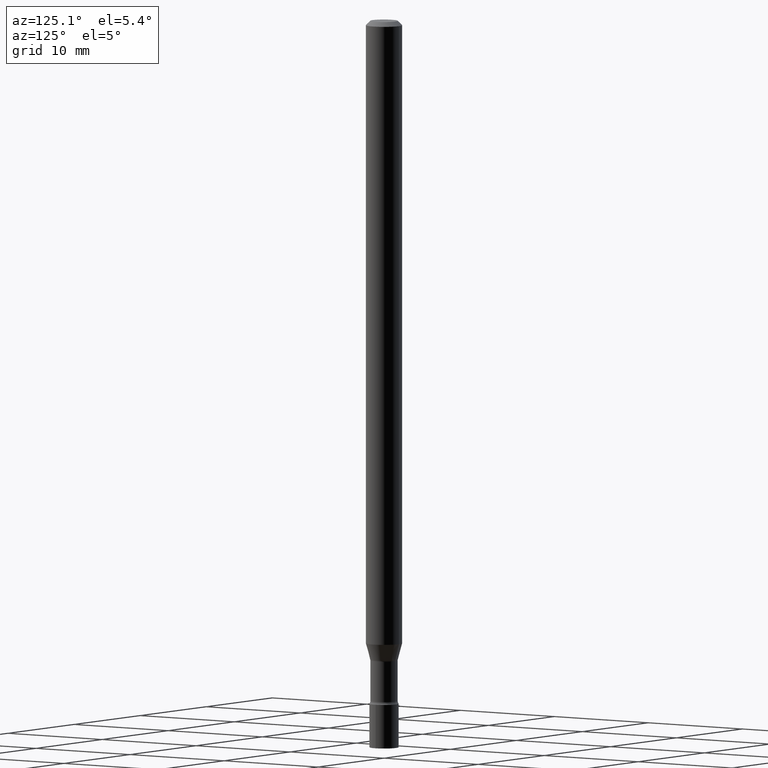
[diagram: clean part render]
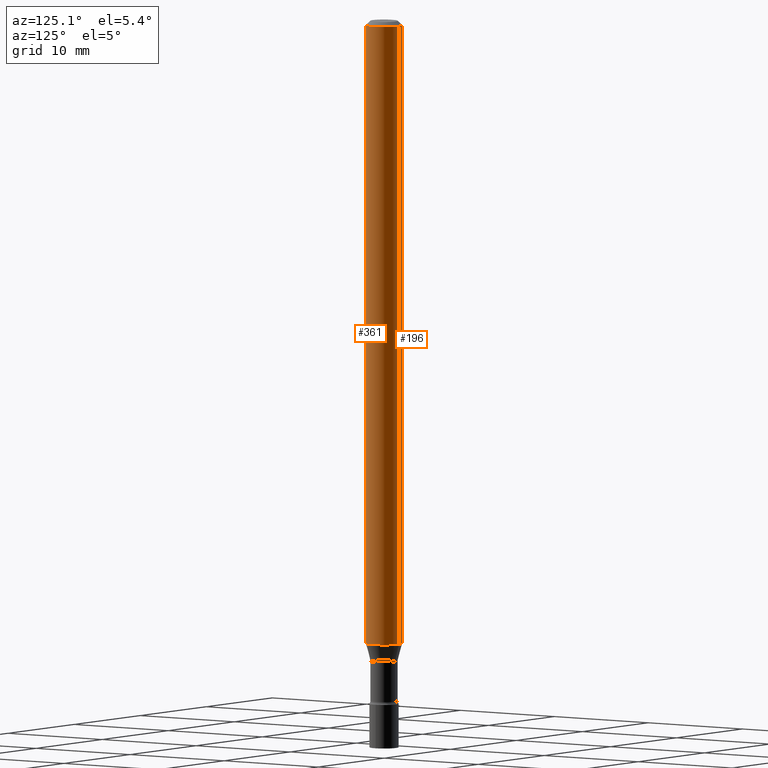
[diagram: same view with one multi-face feature highlighted, each face labeled with its STEP entity id]
A machine part, auxiliary view. The highlighted faces form ONE feature: a constant-radius fillet chain: 2 tangent blend faces with common blend radius 1.5875 mm. The faces share edges in the B-rep.
Their STEP definitions:
[1] entity #196 (Cylinder):
#40 = ORIENTED_EDGE ( 'NONE', *, *, #226, .F. ) ;
#50 = CYLINDRICAL_SURFACE ( 'NONE', #174, 0.06250000000000000000 ) ;
#52 = CARTESIAN_POINT ( 'NONE',  ( 4.440892098500625669E-16, 0.06250000000000000000, -2.182191447160403024E-16 ) ) ;
#54 = CIRCLE ( 'NONE', #132, 0.06250000000000000000 ) ;
#64 = DIRECTION ( 'NONE',  ( -6.982962677686265922E-15, -1.000000000000000000, 3.483106191921935554E-15 ) ) ;
#66 = DIRECTION ( 'NONE',  ( -6.982962677686265922E-15, -1.000000000000000000, 4.370956789862821150E-15 ) ) ;
#100 = LINE ( 'NONE', #176, #175 ) ;
#120 = CARTESIAN_POINT ( 'NONE',  ( 0.000000000000000000, 0.000000000000000000, 0.000000000000000000 ) ) ;
#122 = FACE_OUTER_BOUND ( 'NONE', #360, .T. ) ;
#126 = DIRECTION ( 'NONE',  ( -2.445451365109148725E-29, 3.491506315456644838E-15, 1.000000000000000000 ) ) ;
#132 = AXIS2_PLACEMENT_3D ( 'NONE', #416, #466, #66 ) ;
#146 = AXIS2_PLACEMENT_3D ( 'NONE', #331, #126, #64 ) ;
#174 = AXIS2_PLACEMENT_3D ( 'NONE', #120, #323, #278 ) ;
#175 = VECTOR ( 'NONE', #339, 39.37007874015748143 ) ;
#176 = CARTESIAN_POINT ( 'NONE',  ( -4.364351673553916201E-16, -0.06250000000000000000, 2.182191447160403024E-16 ) ) ;
#178 = CARTESIAN_POINT ( 'NONE',  ( 4.440892098501151740E-16, 0.06249999999999255457, -2.142153212482682978 ) ) ;
#196 = ADVANCED_FACE ( 'NONE', ( #122 ), #50, .T. ) ;
#213 = VERTEX_POINT ( 'NONE', #279 ) ;
#226 = EDGE_CURVE ( 'NONE', #213, #474, #374, .T. ) ;
#278 = DIRECTION ( 'NONE',  ( -6.982962677686265922E-15, -1.000000000000000000, 3.491506315456644838E-15 ) ) ;
#279 = CARTESIAN_POINT ( 'NONE',  ( 4.440892098501153712E-16, 0.06249999999999995837, -0.01500000000000024751 ) ) ;
#283 = VERTEX_POINT ( 'NONE', #178 ) ;
#304 = ORIENTED_EDGE ( 'NONE', *, *, #310, .F. ) ;
#308 = CARTESIAN_POINT ( 'NONE',  ( -4.364351673553390129E-16, -0.06250000000000743849, -2.142153212482682090 ) ) ;
#310 = EDGE_CURVE ( 'NONE', #283, #213, #405, .T. ) ;
#323 = DIRECTION ( 'NONE',  ( -2.445451365109148725E-29, 3.491506315456644838E-15, 1.000000000000000000 ) ) ;
#331 = CARTESIAN_POINT ( 'NONE',  ( 3.668177047663730198E-31, -5.237259473184978080E-17, -0.01500000000000003067 ) ) ;
#339 = DIRECTION ( 'NONE',  ( -2.445451365109148725E-29, 3.491506315456645233E-15, 1.000000000000000000 ) ) ;
#348 = EDGE_CURVE ( 'NONE', #368, #474, #100, .T. ) ;
#360 = EDGE_LOOP ( 'NONE', ( #304, #479, #381, #40 ) ) ;
#368 = VERTEX_POINT ( 'NONE', #308 ) ;
#369 = EDGE_CURVE ( 'NONE', #283, #368, #54, .T. ) ;
#374 = CIRCLE ( 'NONE', #146, 0.06250000000000000000 ) ;
#381 = ORIENTED_EDGE ( 'NONE', *, *, #348, .T. ) ;
#393 = VECTOR ( 'NONE', #450, 39.37007874015748143 ) ;
#405 = LINE ( 'NONE', #52, #393 ) ;
#416 = CARTESIAN_POINT ( 'NONE',  ( 5.238531497738724756E-29, -7.479341470059026022E-15, -2.142153212482682534 ) ) ;
#425 = CARTESIAN_POINT ( 'NONE',  ( -4.364351673553912750E-16, -0.06250000000000005551, -0.01499999999999981209 ) ) ;
#450 = DIRECTION ( 'NONE',  ( -2.445451365109148725E-29, 3.491506315456645233E-15, 1.000000000000000000 ) ) ;
#466 = DIRECTION ( 'NONE',  ( -2.445451365109148725E-29, 3.491506315456644838E-15, 1.000000000000000000 ) ) ;
#474 = VERTEX_POINT ( 'NONE', #425 ) ;
#479 = ORIENTED_EDGE ( 'NONE', *, *, #369, .T. ) ;
[2] entity #361 (Cylinder):
#24 = CYLINDRICAL_SURFACE ( 'NONE', #407, 0.06250000000000000000 ) ;
#52 = CARTESIAN_POINT ( 'NONE',  ( 4.440892098500625669E-16, 0.06250000000000000000, -2.182191447160403024E-16 ) ) ;
#100 = LINE ( 'NONE', #176, #175 ) ;
#110 = CARTESIAN_POINT ( 'NONE',  ( 3.668177047663730198E-31, -5.237259473184978080E-17, -0.01500000000000003067 ) ) ;
#141 = DIRECTION ( 'NONE',  ( -6.982962677686265922E-15, -1.000000000000000000, 4.370956789862821150E-15 ) ) ;
#175 = VECTOR ( 'NONE', #339, 39.37007874015748143 ) ;
#176 = CARTESIAN_POINT ( 'NONE',  ( -4.364351673553916201E-16, -0.06250000000000000000, 2.182191447160403024E-16 ) ) ;
#178 = CARTESIAN_POINT ( 'NONE',  ( 4.440892098501151740E-16, 0.06249999999999255457, -2.142153212482682978 ) ) ;
#183 = AXIS2_PLACEMENT_3D ( 'NONE', #110, #351, #499 ) ;
#191 = CARTESIAN_POINT ( 'NONE',  ( 5.238531497738724756E-29, -7.479341470059026022E-15, -2.142153212482682534 ) ) ;
#213 = VERTEX_POINT ( 'NONE', #279 ) ;
#224 = CARTESIAN_POINT ( 'NONE',  ( 0.000000000000000000, 0.000000000000000000, 0.000000000000000000 ) ) ;
#254 = ORIENTED_EDGE ( 'NONE', *, *, #383, .F. ) ;
#279 = CARTESIAN_POINT ( 'NONE',  ( 4.440892098501153712E-16, 0.06249999999999995837, -0.01500000000000024751 ) ) ;
#283 = VERTEX_POINT ( 'NONE', #178 ) ;
#308 = CARTESIAN_POINT ( 'NONE',  ( -4.364351673553390129E-16, -0.06250000000000743849, -2.142153212482682090 ) ) ;
#310 = EDGE_CURVE ( 'NONE', #283, #213, #405, .T. ) ;
#339 = DIRECTION ( 'NONE',  ( -2.445451365109148725E-29, 3.491506315456645233E-15, 1.000000000000000000 ) ) ;
#348 = EDGE_CURVE ( 'NONE', #368, #474, #100, .T. ) ;
#351 = DIRECTION ( 'NONE',  ( -2.445451365109148725E-29, 3.491506315456644838E-15, 1.000000000000000000 ) ) ;
#357 = ORIENTED_EDGE ( 'NONE', *, *, #310, .T. ) ;
#361 = ADVANCED_FACE ( 'NONE', ( #447 ), #24, .T. ) ;
#368 = VERTEX_POINT ( 'NONE', #308 ) ;
#383 = EDGE_CURVE ( 'NONE', #474, #213, #441, .T. ) ;
#393 = VECTOR ( 'NONE', #450, 39.37007874015748143 ) ;
#405 = LINE ( 'NONE', #52, #393 ) ;
#407 = AXIS2_PLACEMENT_3D ( 'NONE', #224, #460, #419 ) ;
#413 = CIRCLE ( 'NONE', #471, 0.06250000000000000000 ) ;
#415 = ORIENTED_EDGE ( 'NONE', *, *, #348, .F. ) ;
#419 = DIRECTION ( 'NONE',  ( -6.982962677686265922E-15, -1.000000000000000000, 3.491506315456644838E-15 ) ) ;
#422 = EDGE_LOOP ( 'NONE', ( #449, #357, #254, #415 ) ) ;
#425 = CARTESIAN_POINT ( 'NONE',  ( -4.364351673553912750E-16, -0.06250000000000005551, -0.01499999999999981209 ) ) ;
#441 = CIRCLE ( 'NONE', #183, 0.06250000000000000000 ) ;
#447 = FACE_OUTER_BOUND ( 'NONE', #422, .T. ) ;
#449 = ORIENTED_EDGE ( 'NONE', *, *, #488, .T. ) ;
#450 = DIRECTION ( 'NONE',  ( -2.445451365109148725E-29, 3.491506315456645233E-15, 1.000000000000000000 ) ) ;
#460 = DIRECTION ( 'NONE',  ( -2.445451365109148725E-29, 3.491506315456644838E-15, 1.000000000000000000 ) ) ;
#467 = DIRECTION ( 'NONE',  ( -2.445451365109148725E-29, 3.491506315456644838E-15, 1.000000000000000000 ) ) ;
#471 = AXIS2_PLACEMENT_3D ( 'NONE', #191, #467, #141 ) ;
#474 = VERTEX_POINT ( 'NONE', #425 ) ;
#488 = EDGE_CURVE ( 'NONE', #368, #283, #413, .T. ) ;
#499 = DIRECTION ( 'NONE',  ( -6.982962677686265922E-15, -1.000000000000000000, 3.483106191921935554E-15 ) ) ;